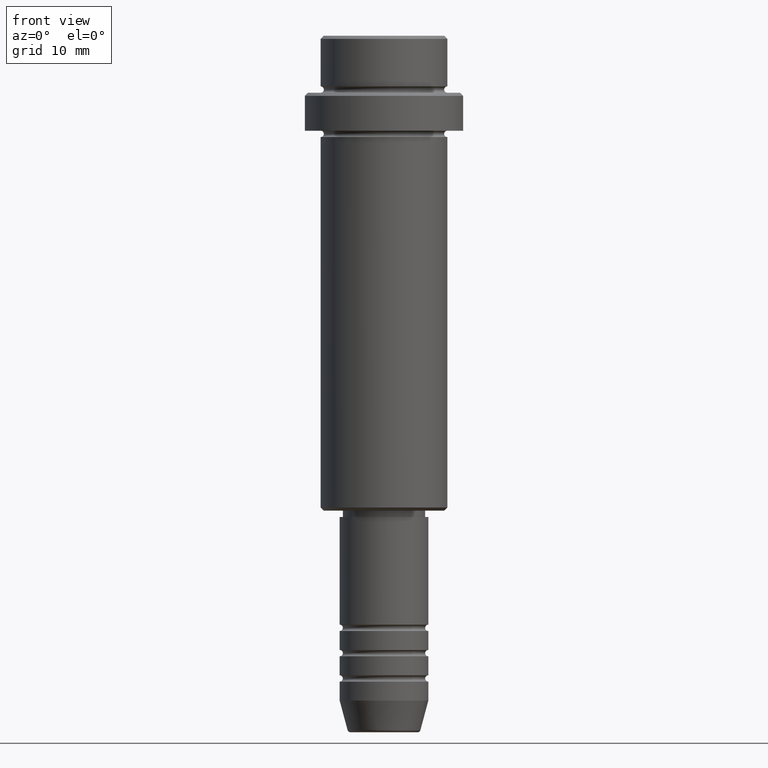
[diagram: clean part render]
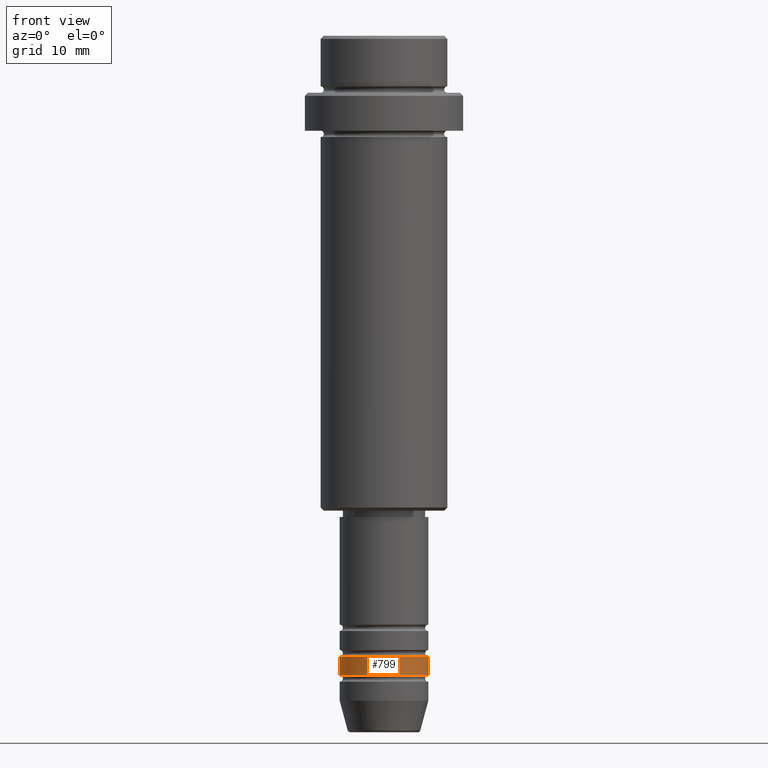
[diagram: same view with one face highlighted and labeled with its STEP entity id]
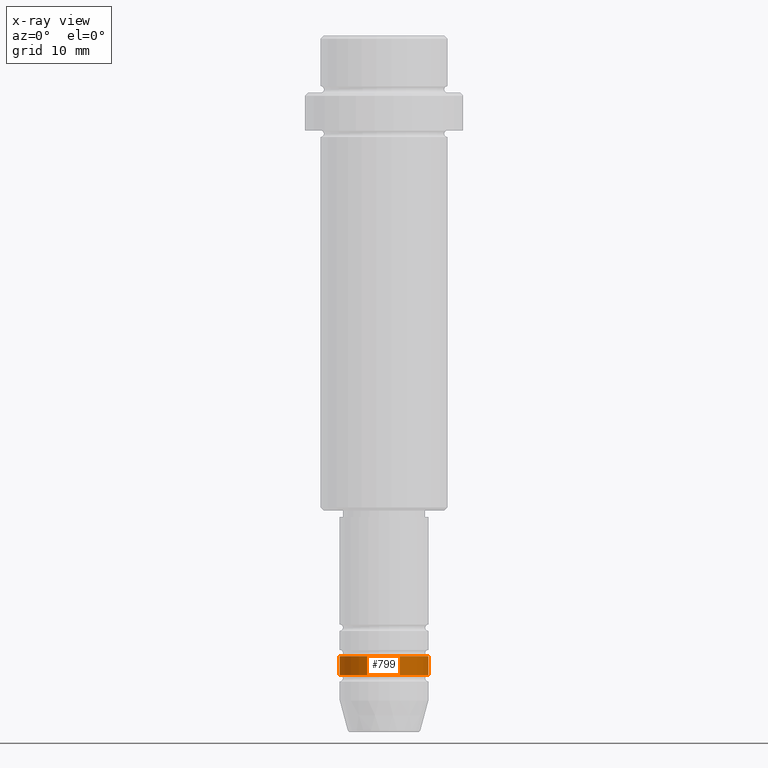
[diagram: x-ray of the same camera — body ghosted, the highlighted face saturated]
A machine part, front view. The second image highlights one B-rep face of the part: STEP entity #799.
The next image is the same camera in x-ray: the body ghosted, the highlighted face saturated — about 0% of this face is hidden behind the body in this view.
In plain terms, the highlighted cylindrical surface (partial cylindrical patch) has radius 7 mm, axis along (-0, -0, 1).
Its self-contained STEP definition (entity closure, byte-faithful):
#3 = CARTESIAN_POINT ( 'NONE',  ( -7.000000000000000000, 8.572527594031473190E-16, 0.000000000000000000 ) ) ;
#32 = DIRECTION ( 'NONE',  ( -0.000000000000000000, -0.000000000000000000, 1.000000000000000000 ) ) ;
#37 = VECTOR ( 'NONE', #529, 1000.000000000000000 ) ;
#91 = FACE_OUTER_BOUND ( 'NONE', #1249, .T. ) ;
#169 = EDGE_CURVE ( 'NONE', #1052, #1414, #905, .T. ) ;
#191 = EDGE_CURVE ( 'NONE', #925, #1414, #801, .T. ) ;
#245 = DIRECTION ( 'NONE',  ( 1.000000000000000000, 0.000000000000000000, 0.000000000000000000 ) ) ;
#310 = DIRECTION ( 'NONE',  ( -0.000000000000000000, -0.000000000000000000, 1.000000000000000000 ) ) ;
#321 = ORIENTED_EDGE ( 'NONE', *, *, #169, .T. ) ;
#356 = CARTESIAN_POINT ( 'NONE',  ( 7.000000000000000000, 0.000000000000000000, 0.000000000000000000 ) ) ;
#496 = VECTOR ( 'NONE', #32, 1000.000000000000000 ) ;
#508 = ORIENTED_EDGE ( 'NONE', *, *, #822, .T. ) ;
#516 = EDGE_CURVE ( 'NONE', #1190, #925, #650, .T. ) ;
#529 = DIRECTION ( 'NONE',  ( -0.000000000000000000, -0.000000000000000000, 1.000000000000000000 ) ) ;
#605 = CARTESIAN_POINT ( 'NONE',  ( 7.000000000000000000, 0.000000000000000000, -100.9999999999998863 ) ) ;
#650 = LINE ( 'NONE', #3, #37 ) ;
#689 = AXIS2_PLACEMENT_3D ( 'NONE', #1351, #808, #710 ) ;
#694 = CARTESIAN_POINT ( 'NONE',  ( 0.000000000000000000, 0.000000000000000000, -97.99999999999988631 ) ) ;
#710 = DIRECTION ( 'NONE',  ( 1.000000000000000000, 0.000000000000000000, 0.000000000000000000 ) ) ;
#757 = ORIENTED_EDGE ( 'NONE', *, *, #516, .F. ) ;
#799 = ADVANCED_FACE ( 'NONE', ( #91 ), #1300, .T. ) ;
#801 = CIRCLE ( 'NONE', #1362, 7.000000000000000000 ) ;
#808 = DIRECTION ( 'NONE',  ( -0.000000000000000000, -0.000000000000000000, 1.000000000000000000 ) ) ;
#822 = EDGE_CURVE ( 'NONE', #1190, #1052, #1246, .T. ) ;
#854 = CARTESIAN_POINT ( 'NONE',  ( 7.000000000000000000, 0.000000000000000000, -97.99999999999988631 ) ) ;
#905 = LINE ( 'NONE', #356, #496 ) ;
#925 = VERTEX_POINT ( 'NONE', #994 ) ;
#962 = DIRECTION ( 'NONE',  ( 1.000000000000000000, 0.000000000000000000, 0.000000000000000000 ) ) ;
#994 = CARTESIAN_POINT ( 'NONE',  ( -7.000000000000000000, 8.572527594031473190E-16, -97.99999999999988631 ) ) ;
#1052 = VERTEX_POINT ( 'NONE', #605 ) ;
#1086 = CARTESIAN_POINT ( 'NONE',  ( 0.000000000000000000, 0.000000000000000000, 0.000000000000000000 ) ) ;
#1096 = CARTESIAN_POINT ( 'NONE',  ( -7.000000000000000000, 8.572527594031473190E-16, -100.9999999999998863 ) ) ;
#1128 = DIRECTION ( 'NONE',  ( -0.000000000000000000, -0.000000000000000000, 1.000000000000000000 ) ) ;
#1190 = VERTEX_POINT ( 'NONE', #1096 ) ;
#1246 = CIRCLE ( 'NONE', #689, 7.000000000000000000 ) ;
#1249 = EDGE_LOOP ( 'NONE', ( #757, #508, #321, #1355 ) ) ;
#1300 = CYLINDRICAL_SURFACE ( 'NONE', #1342, 7.000000000000000000 ) ;
#1342 = AXIS2_PLACEMENT_3D ( 'NONE', #1086, #310, #962 ) ;
#1351 = CARTESIAN_POINT ( 'NONE',  ( 0.000000000000000000, 0.000000000000000000, -100.9999999999998863 ) ) ;
#1355 = ORIENTED_EDGE ( 'NONE', *, *, #191, .F. ) ;
#1362 = AXIS2_PLACEMENT_3D ( 'NONE', #694, #1128, #245 ) ;
#1414 = VERTEX_POINT ( 'NONE', #854 ) ;